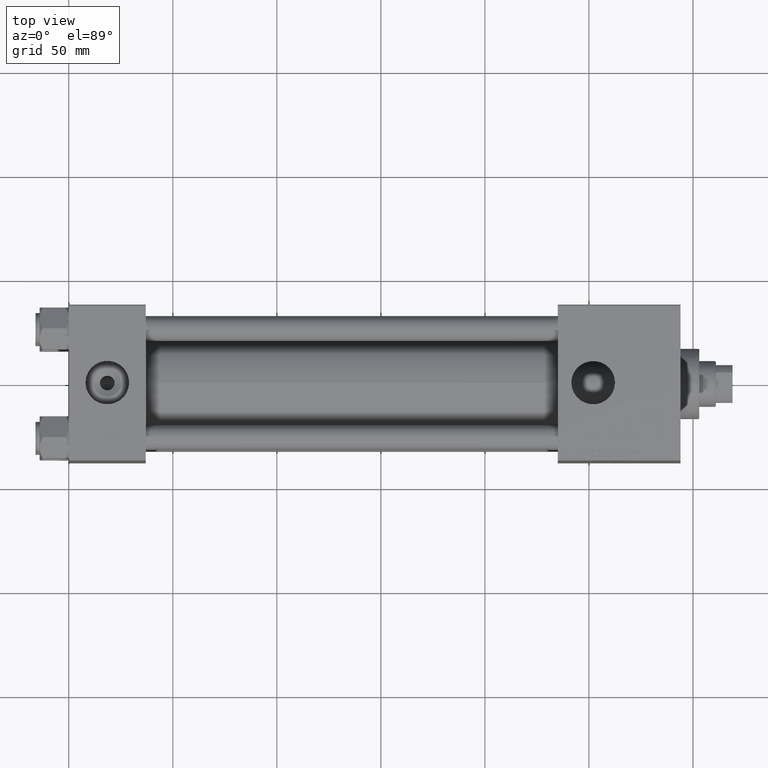
[diagram: clean part render]
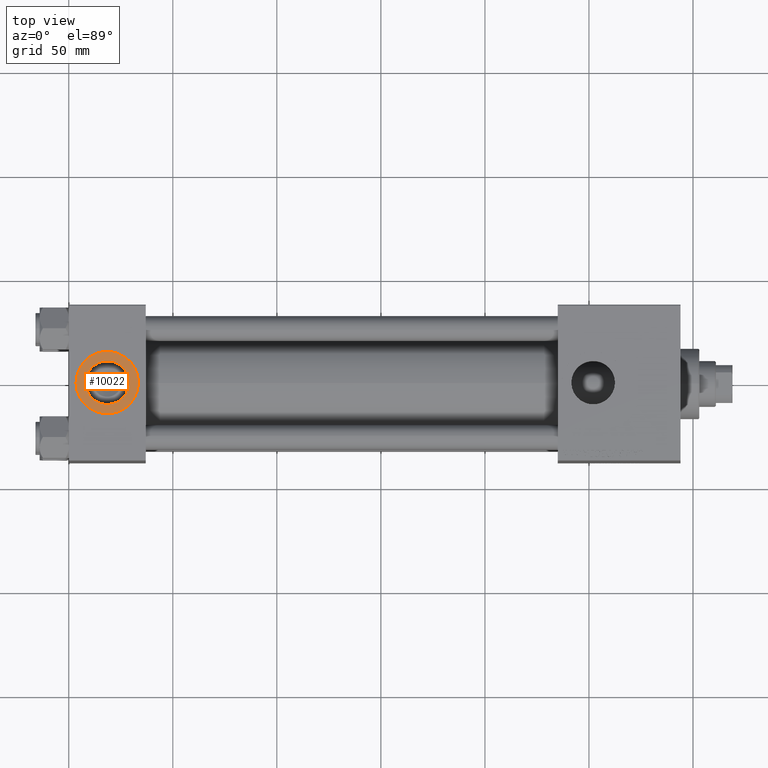
[diagram: same view with one face highlighted and labeled with its STEP entity id]
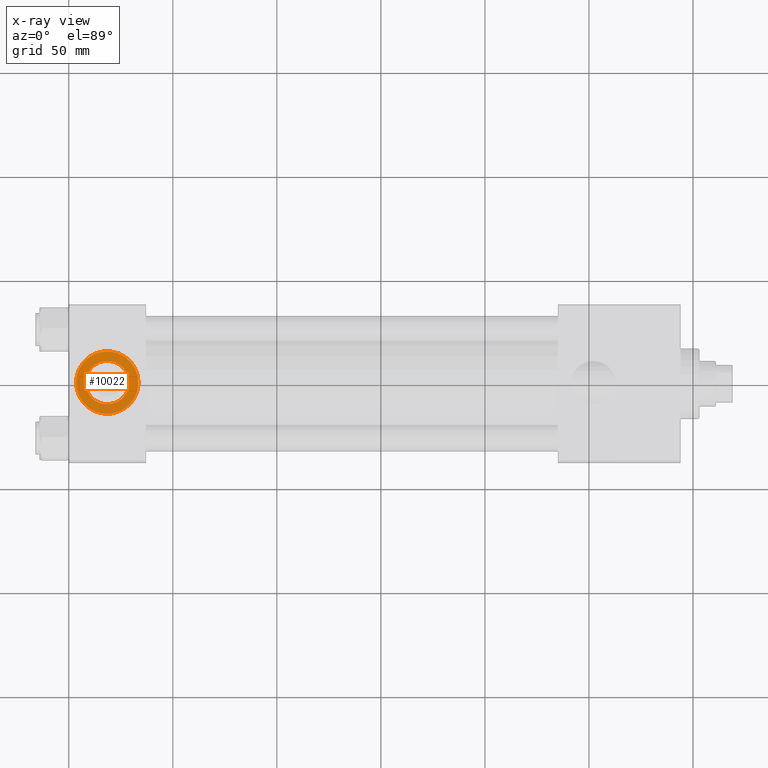
[diagram: x-ray of the same camera — body ghosted, the highlighted face saturated]
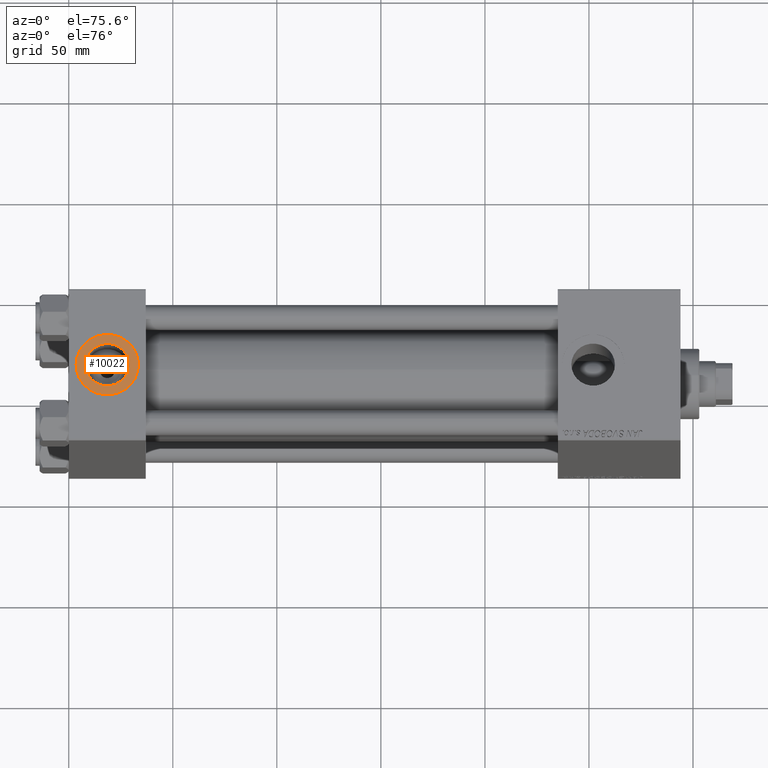
[diagram: same view with one face highlighted and labeled with its STEP entity id]
A machine part, top view. The second image highlights one B-rep face of the part: STEP entity #10022.
The next image is the same camera in x-ray: the body ghosted, the highlighted face saturated — about 0% of this face is hidden behind the body in this view.
A second angle (auxiliary view) of the same face is appended — the face is thin or edge-on in the first view.
In plain terms, the highlighted planar face has unit normal (0, 0, 1).
Its self-contained STEP definition (entity closure, byte-faithful):
#2495 = CARTESIAN_POINT ( 'NONE',  ( 18.50000000000000000, -5.204170427930421283E-15, 37.29999999999999716 ) ) ;
#2578 = DIRECTION ( 'NONE',  ( 0.000000000000000000, 0.000000000000000000, 1.000000000000000000 ) ) ;
#3246 = DIRECTION ( 'NONE',  ( 1.000000000000000000, 0.000000000000000000, 0.000000000000000000 ) ) ;
#4105 = ORIENTED_EDGE ( 'NONE', *, *, #37463, .F. ) ;
#5998 = EDGE_CURVE ( 'NONE', #32678, #18659, #50333, .T. ) ;
#7626 = ORIENTED_EDGE ( 'NONE', *, *, #18082, .F. ) ;
#8523 = DIRECTION ( 'NONE',  ( 0.000000000000000000, 0.000000000000000000, 1.000000000000000000 ) ) ;
#9134 = EDGE_LOOP ( 'NONE', ( #49497, #21870 ) ) ;
#10022 = ADVANCED_FACE ( 'NONE', ( #47651, #37400 ), #44771, .T. ) ;
#10372 = DIRECTION ( 'NONE',  ( 1.000000000000000000, 0.000000000000000000, 0.000000000000000000 ) ) ;
#11601 = CARTESIAN_POINT ( 'NONE',  ( 28.98000000000000043, -5.204170427930421283E-15, 37.29999999999999716 ) ) ;
#11926 = CARTESIAN_POINT ( 'NONE',  ( 18.50000000000000000, -5.204170427930421283E-15, 37.29999999999999716 ) ) ;
#13721 = CARTESIAN_POINT ( 'NONE',  ( 8.019999999999999574, -3.920740582423995006E-15, 37.29999999999999716 ) ) ;
#13931 = AXIS2_PLACEMENT_3D ( 'NONE', #2495, #39774, #33328 ) ;
#14698 = DIRECTION ( 'NONE',  ( 0.000000000000000000, 0.000000000000000000, 1.000000000000000000 ) ) ;
#14866 = CIRCLE ( 'NONE', #29468, 10.48000000000000043 ) ;
#18082 = EDGE_CURVE ( 'NONE', #32790, #27489, #14866, .T. ) ;
#18132 = DIRECTION ( 'NONE',  ( 1.000000000000000000, 0.000000000000000000, 0.000000000000000000 ) ) ;
#18659 = VERTEX_POINT ( 'NONE', #21094 ) ;
#18750 = EDGE_LOOP ( 'NONE', ( #4105, #7626 ) ) ;
#21094 = CARTESIAN_POINT ( 'NONE',  ( 33.50000000000000000, -5.204170427930421283E-15, 37.29999999999999716 ) ) ;
#21838 = CARTESIAN_POINT ( 'NONE',  ( 18.50000000000000000, -5.204170427930421283E-15, 37.29999999999999716 ) ) ;
#21870 = ORIENTED_EDGE ( 'NONE', *, *, #5998, .T. ) ;
#27489 = VERTEX_POINT ( 'NONE', #11601 ) ;
#29468 = AXIS2_PLACEMENT_3D ( 'NONE', #37486, #2578, #18132 ) ;
#29943 = AXIS2_PLACEMENT_3D ( 'NONE', #21838, #14698, #10372 ) ;
#31062 = CARTESIAN_POINT ( 'NONE',  ( 3.499999999999997780, -3.367200229209391300E-15, 37.29999999999999716 ) ) ;
#32678 = VERTEX_POINT ( 'NONE', #31062 ) ;
#32790 = VERTEX_POINT ( 'NONE', #13721 ) ;
#32956 = CIRCLE ( 'NONE', #50030, 10.48000000000000043 ) ;
#33328 = DIRECTION ( 'NONE',  ( 1.000000000000000000, 0.000000000000000000, -0.000000000000000000 ) ) ;
#34079 = CARTESIAN_POINT ( 'NONE',  ( 18.50000000000000000, -5.204170427930421283E-15, 37.29999999999999716 ) ) ;
#37400 = FACE_OUTER_BOUND ( 'NONE', #9134, .T. ) ;
#37463 = EDGE_CURVE ( 'NONE', #27489, #32790, #32956, .T. ) ;
#37486 = CARTESIAN_POINT ( 'NONE',  ( 18.50000000000000000, -5.204170427930421283E-15, 37.29999999999999716 ) ) ;
#39774 = DIRECTION ( 'NONE',  ( 0.000000000000000000, 0.000000000000000000, 1.000000000000000000 ) ) ;
#39855 = DIRECTION ( 'NONE',  ( 0.000000000000000000, 0.000000000000000000, 1.000000000000000000 ) ) ;
#40100 = DIRECTION ( 'NONE',  ( 1.000000000000000000, 0.000000000000000000, 0.000000000000000000 ) ) ;
#42203 = AXIS2_PLACEMENT_3D ( 'NONE', #11926, #39855, #40100 ) ;
#44771 = PLANE ( 'NONE',  #13931 ) ;
#45370 = CIRCLE ( 'NONE', #29943, 15.00000000000000355 ) ;
#45441 = EDGE_CURVE ( 'NONE', #18659, #32678, #45370, .T. ) ;
#47651 = FACE_BOUND ( 'NONE', #18750, .T. ) ;
#49497 = ORIENTED_EDGE ( 'NONE', *, *, #45441, .T. ) ;
#50030 = AXIS2_PLACEMENT_3D ( 'NONE', #34079, #8523, #3246 ) ;
#50333 = CIRCLE ( 'NONE', #42203, 15.00000000000000355 ) ;